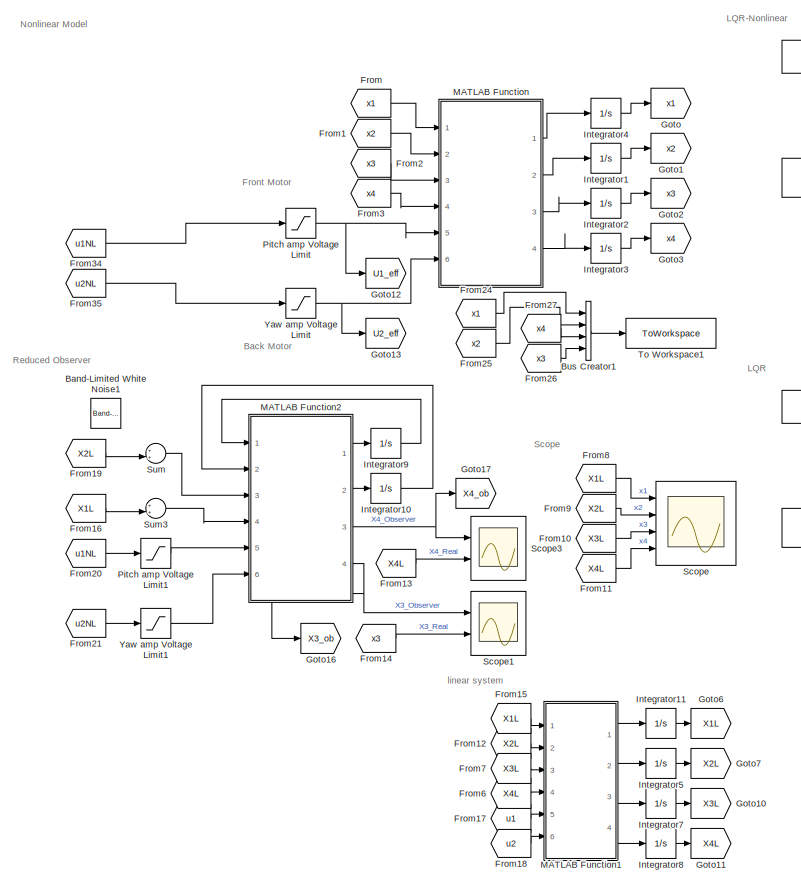
[diagram: root canvas - part 1/4, left side, full height]
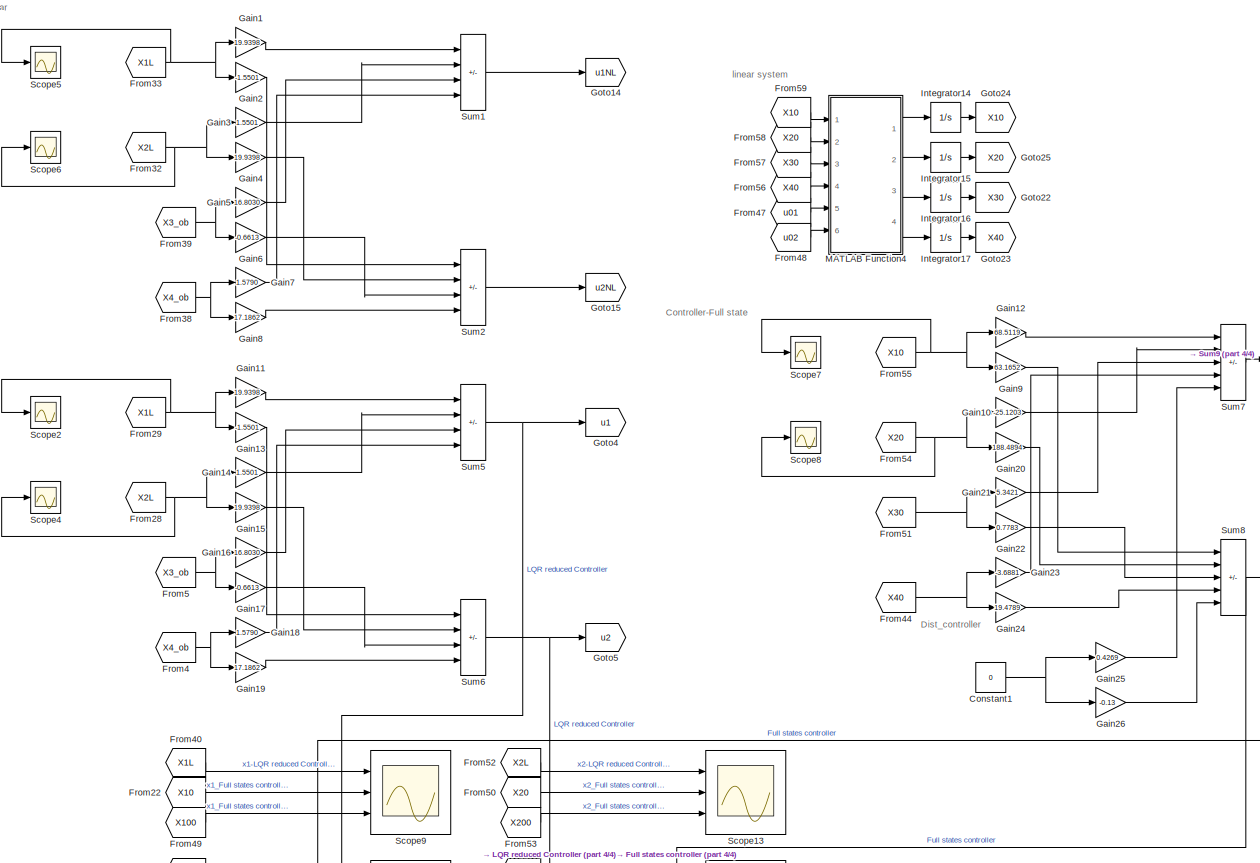
[diagram: root canvas - part 2/4, center side, full height]
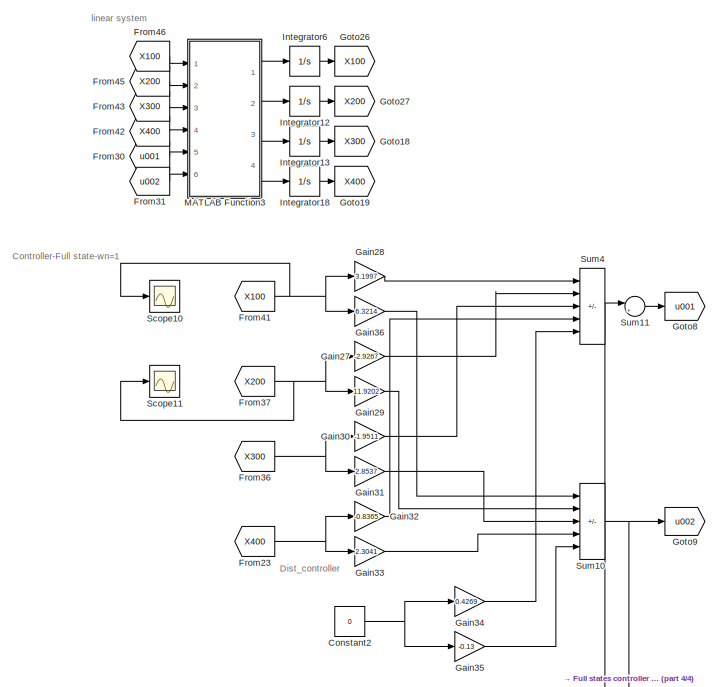
[diagram: root canvas - part 3/4, middle right region]
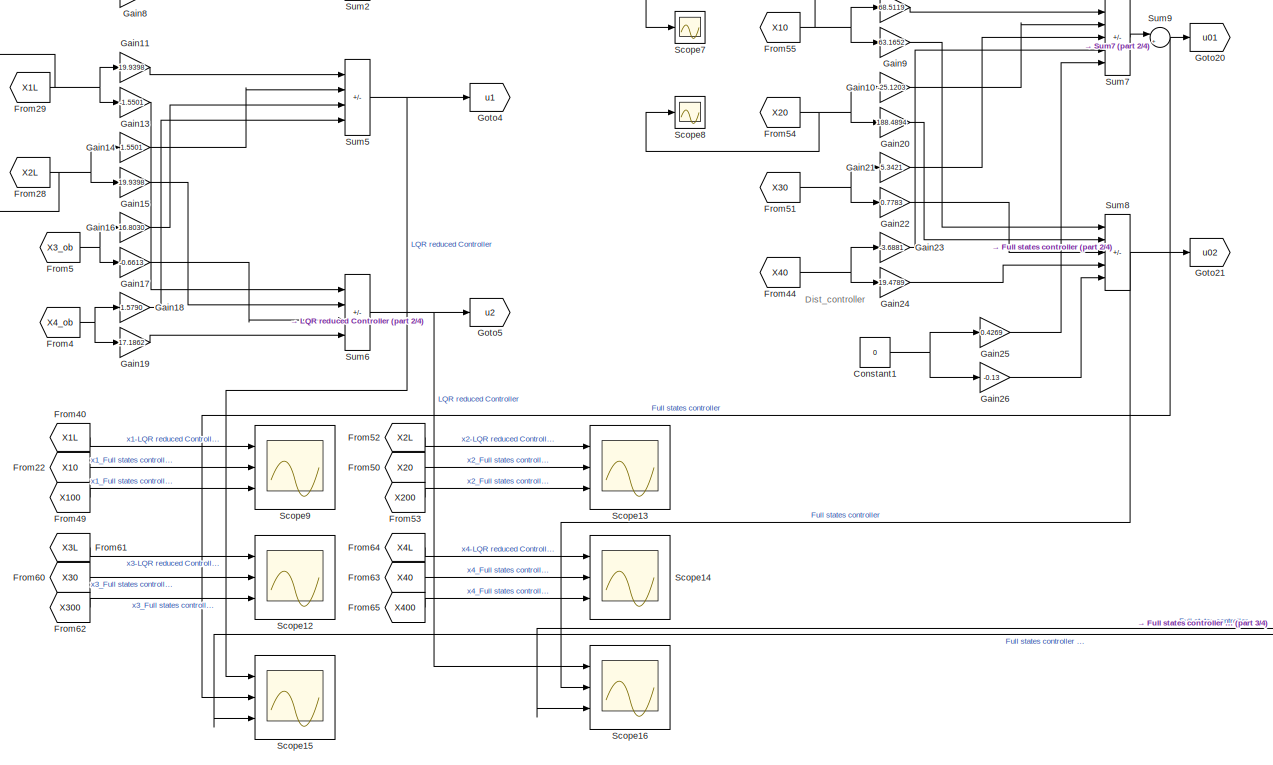
[diagram: root canvas - part 4/4, central region]
MODEL slx_fb1bff29dac0
KIND model
CONFIG AbsTol = auto
CONFIG EnableMultiTasking = off
CONFIG FixedStep = auto
CONFIG InitFcn = % NOTE: If using VoltPAQ-X1, make sure both Gain switches are set to 3.\nK_AMP = 3;\n% Maximum Output Voltage (V): YAW limited to 15 V. PITCH limited to 24 V.\nVMAX_AMP_P = 24;\nVMAX_AMP_Y = 15;\n% Initial Angle of Pitch (rad)\ntheta_0 = -40.5*pi/180;\n\ng = 9.81;\n\n% Pitch and Yaw Motor Armature Resistance (Ohm)\nR_m_p = 0.83;\nR_m_y = 1.60;\n\n% Pitch and Yaw Motor Current-Torque Constant (N.m/A)\nK_t_p = 0.0...<+2432ch>
CONFIG MaxStep = auto
CONFIG MinStep = auto
CONFIG RelTol = 1e-3
CONFIG SampleTimeConstraint = Unconstrained
CONFIG Solver = VariableStepAuto
CONFIG SolverName = VariableStepAuto
CONFIG StartTime = 0.0
CONFIG StopTime = 10
BLOCK [Reference] Band-Limited White Noise1  REF=simulink/Sources/Band-Limited
White Noise
  Ports = [0, 1]
  SourceBlock = simulink/Sources/Band-Limited\nWhite Noise
  SourceProductBaseCode = SL
  SourceType = Band-Limited White Noise.
BLOCK [BusCreator] Bus Creator1
  DisplayOption = bar
  InheritFromInputs = on
  Inputs = 4
  Ports = [4, 1]
BLOCK [Constant] Constant1
  Value = 0
BLOCK [Constant] Constant2
  Value = 0
BLOCK [From] From
  GotoTag = x1
BLOCK [From] From1
  GotoTag = x2
BLOCK [From] From10
  GotoTag = X3L
BLOCK [From] From11
  GotoTag = X4L
BLOCK [From] From12
  GotoTag = X2L
BLOCK [From] From13
  GotoTag = X4L
BLOCK [From] From14
  GotoTag = x3
BLOCK [From] From15
  GotoTag = X1L
BLOCK [From] From16
  GotoTag = X1L
BLOCK [From] From17
  GotoTag = u1
BLOCK [From] From18
  GotoTag = u2
BLOCK [From] From19
  GotoTag = X2L
BLOCK [From] From2
  GotoTag = x3
BLOCK [From] From20
  GotoTag = u1NL
BLOCK [From] From21
  GotoTag = u2NL
BLOCK [From] From22
  GotoTag = X10
BLOCK [From] From23
  GotoTag = X400
BLOCK [From] From24
  GotoTag = x1
BLOCK [From] From25
  GotoTag = x2
BLOCK [From] From26
  GotoTag = x3
BLOCK [From] From27
  GotoTag = x4
BLOCK [From] From28
  GotoTag = X2L
BLOCK [From] From29
  GotoTag = X1L
BLOCK [From] From3
  GotoTag = x4
BLOCK [From] From30
  GotoTag = u001
BLOCK [From] From31
  GotoTag = u002
BLOCK [From] From32
  GotoTag = X2L
BLOCK [From] From33
  GotoTag = X1L
BLOCK [From] From34
  GotoTag = u1NL
BLOCK [From] From35
  GotoTag = u2NL
BLOCK [From] From36
  GotoTag = X300
BLOCK [From] From37
  GotoTag = X200
BLOCK [From] From38
  GotoTag = X4_ob
BLOCK [From] From39
  GotoTag = X3_ob
BLOCK [From] From4
  GotoTag = X4_ob
BLOCK [From] From40
  GotoTag = X1L
BLOCK [From] From41
  GotoTag = X100
BLOCK [From] From42
  GotoTag = X400
BLOCK [From] From43
  GotoTag = X300
BLOCK [From] From44
  GotoTag = X40
BLOCK [From] From45
  GotoTag = X200
BLOCK [From] From46
  GotoTag = X100
BLOCK [From] From47
  GotoTag = u01
BLOCK [From] From48
  GotoTag = u02
BLOCK [From] From49
  GotoTag = X100
BLOCK [From] From5
  GotoTag = X3_ob
BLOCK [From] From50
  GotoTag = X20
BLOCK [From] From51
  GotoTag = X30
BLOCK [From] From52
  GotoTag = X2L
BLOCK [From] From53
  GotoTag = X200
BLOCK [From] From54
  GotoTag = X20
BLOCK [From] From55
  GotoTag = X10
BLOCK [From] From56
  GotoTag = X40
BLOCK [From] From57
  GotoTag = X30
BLOCK [From] From58
  GotoTag = X20
BLOCK [From] From59
  GotoTag = X10
BLOCK [From] From6
  GotoTag = X4L
BLOCK [From] From60
  GotoTag = X30
BLOCK [From] From61
  GotoTag = X3L
BLOCK [From] From62
  GotoTag = X300
BLOCK [From] From63
  GotoTag = X40
BLOCK [From] From64
  GotoTag = X4L
BLOCK [From] From65
  GotoTag = X400
BLOCK [From] From7
  GotoTag = X3L
BLOCK [From] From8
  GotoTag = X1L
BLOCK [From] From9
  GotoTag = X2L
BLOCK [Gain] Gain1
  Gain = 19.9398
BLOCK [Gain] Gain10
  Gain = -25.1203
BLOCK [Gain] Gain11
  Gain = 19.9398
BLOCK [Gain] Gain12
  Gain = 68.5119
BLOCK [Gain] Gain13
  Gain = -1.5501
BLOCK [Gain] Gain14
  Gain = 1.5501
BLOCK [Gain] Gain15
  Gain = 19.9398
BLOCK [Gain] Gain16
  Gain = 16.8030
BLOCK [Gain] Gain17
  Gain = -0.6613
BLOCK [Gain] Gain18
  Gain = 1.5790
BLOCK [Gain] Gain19
  Gain = 17.1862
BLOCK [Gain] Gain2
  Gain = -1.5501
BLOCK [Gain] Gain20
  Gain = 188.4894
BLOCK [Gain] Gain21
  Gain = 5.3421
BLOCK [Gain] Gain22
  Gain = 0.7783
BLOCK [Gain] Gain23
  Gain = -3.6881
BLOCK [Gain] Gain24
  Gain = 19.4789
BLOCK [Gain] Gain25
  Gain = 0.4269
BLOCK [Gain] Gain26
  Gain = -0.13
BLOCK [Gain] Gain27
  Gain = -2.9267
BLOCK [Gain] Gain28
  Gain = 3.1997
BLOCK [Gain] Gain29
  Gain = 11.9202
BLOCK [Gain] Gain3
  Gain = 1.5501
BLOCK [Gain] Gain30
  Gain = -1.9511
BLOCK [Gain] Gain31
  Gain = 2.8537
BLOCK [Gain] Gain32
  Gain = -0.8365
BLOCK [Gain] Gain33
  Gain = 2.3041
BLOCK [Gain] Gain34
  Gain = 0.4269
BLOCK [Gain] Gain35
  Gain = -0.13
BLOCK [Gain] Gain36
  Gain = 6.3214
BLOCK [Gain] Gain4
  Gain = 19.9398
BLOCK [Gain] Gain5
  Gain = 16.8030
BLOCK [Gain] Gain6
  Gain = -0.6613
BLOCK [Gain] Gain7
  Gain = 1.5790
BLOCK [Gain] Gain8
  Gain = 17.1862
BLOCK [Gain] Gain9
  Gain = 63.1652
BLOCK [Goto] Goto
  GotoTag = x1
BLOCK [Goto] Goto1
  GotoTag = x2
BLOCK [Goto] Goto10
  GotoTag = X3L
BLOCK [Goto] Goto11
  GotoTag = X4L
BLOCK [Goto] Goto12
  GotoTag = U1_eff
BLOCK [Goto] Goto13
  GotoTag = U2_eff
BLOCK [Goto] Goto14
  GotoTag = u1NL
BLOCK [Goto] Goto15
  GotoTag = u2NL
BLOCK [Goto] Goto16
  GotoTag = X3_ob
BLOCK [Goto] Goto17
  GotoTag = X4_ob
BLOCK [Goto] Goto18
  GotoTag = X300
BLOCK [Goto] Goto19
  GotoTag = X400
BLOCK [Goto] Goto2
  GotoTag = x3
BLOCK [Goto] Goto20
  GotoTag = u01
BLOCK [Goto] Goto21
  GotoTag = u02
BLOCK [Goto] Goto22
  GotoTag = X30
BLOCK [Goto] Goto23
  GotoTag = X40
BLOCK [Goto] Goto24
  GotoTag = X10
BLOCK [Goto] Goto25
  GotoTag = X20
BLOCK [Goto] Goto26
  GotoTag = X100
BLOCK [Goto] Goto27
  GotoTag = X200
BLOCK [Goto] Goto3
  GotoTag = x4
BLOCK [Goto] Goto4
  GotoTag = u1
BLOCK [Goto] Goto5
  GotoTag = u2
BLOCK [Goto] Goto6
  GotoTag = X1L
BLOCK [Goto] Goto7
  GotoTag = X2L
BLOCK [Goto] Goto8
  GotoTag = u001
BLOCK [Goto] Goto9
  GotoTag = u002
BLOCK [Integrator] Integrator1
  InitialCondition = 10*pi/180
  Ports = [1, 1]
BLOCK [Integrator] Integrator10
  Ports = [1, 1]
BLOCK [Integrator] Integrator11
  LowerSaturationLimit = -40.5*pi/180
  Ports = [1, 1]
  UpperSaturationLimit = 40.5*pi/180
BLOCK [Integrator] Integrator12
  InitialCondition = 10*pi/180
  Ports = [1, 1]
BLOCK [Integrator] Integrator13
  InitialCondition = 10
  Ports = [1, 1]
BLOCK [Integrator] Integrator14
  LowerSaturationLimit = -40.5*pi/180
  Ports = [1, 1]
  UpperSaturationLimit = 40.5*pi/180
BLOCK [Integrator] Integrator15
  InitialCondition = 10*pi/180
  Ports = [1, 1]
BLOCK [Integrator] Integrator16
  InitialCondition = 10
  Ports = [1, 1]
BLOCK [Integrator] Integrator17
  Ports = [1, 1]
BLOCK [Integrator] Integrator18
  Ports = [1, 1]
BLOCK [Integrator] Integrator2
  Ports = [1, 1]
BLOCK [Integrator] Integrator3
  Ports = [1, 1]
BLOCK [Integrator] Integrator4
  LowerSaturationLimit = -40.5*pi/180
  Ports = [1, 1]
  UpperSaturationLimit = 40.5*pi/180
BLOCK [Integrator] Integrator5
  InitialCondition = 10*pi/180
  Ports = [1, 1]
BLOCK [Integrator] Integrator6
  LowerSaturationLimit = -40.5*pi/180
  Ports = [1, 1]
  UpperSaturationLimit = 40.5*pi/180
BLOCK [Integrator] Integrator7
  InitialCondition = 10
  Ports = [1, 1]
BLOCK [Integrator] Integrator8
  Ports = [1, 1]
BLOCK [Integrator] Integrator9
  Ports = [1, 1]
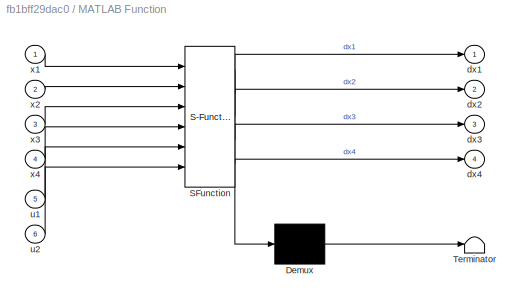
BLOCK [SubSystem] MATLAB Function
  ErrorFcn = Stateflow.Translate.translate
  PermitHierarchicalResolution = ExplicitOnly
  Ports = [6, 4]
  RequestExecContextInheritance = off
  SFBlockType = MATLAB Function
  TreatAsAtomicUnit = on
BLOCK [Demux] MATLAB Function/ Demux 
  Outputs = 1
  Ports = [1, 1]
BLOCK [S-Function] MATLAB Function/ SFunction 
  EnableBusSupport = on
  FunctionName = sf_sfun
  PortCounts = [6 5]
  Ports = [6, 5]
  SFcnIsStateOwnerBlock = off
  SFunctionDeploymentMode = off
  Tag = Stateflow S-Function Optimal_lqr 18
BLOCK [Terminator] MATLAB Function/ Terminator 
BLOCK [Outport] MATLAB Function/dx1
BLOCK [Outport] MATLAB Function/dx2
  Port = 2
BLOCK [Outport] MATLAB Function/dx3
  Port = 3
BLOCK [Outport] MATLAB Function/dx4
  Port = 4
BLOCK [Inport] MATLAB Function/u1
  Port = 5
BLOCK [Inport] MATLAB Function/u2
  Port = 6
BLOCK [Inport] MATLAB Function/x1
BLOCK [Inport] MATLAB Function/x2
  Port = 2
BLOCK [Inport] MATLAB Function/x3
  Port = 3
BLOCK [Inport] MATLAB Function/x4
  Port = 4
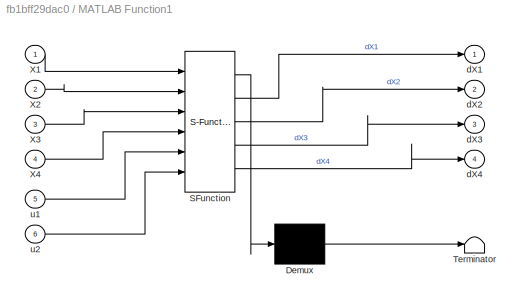
BLOCK [SubSystem] MATLAB Function1
  ErrorFcn = Stateflow.Translate.translate
  PermitHierarchicalResolution = ExplicitOnly
  Ports = [6, 4]
  RequestExecContextInheritance = off
  SFBlockType = MATLAB Function
  TreatAsAtomicUnit = on
BLOCK [Demux] MATLAB Function1/ Demux 
  Outputs = 1
  Ports = [1, 1]
BLOCK [S-Function] MATLAB Function1/ SFunction 
  EnableBusSupport = on
  FunctionName = sf_sfun
  PortCounts = [6 5]
  Ports = [6, 5]
  SFcnIsStateOwnerBlock = off
  SFunctionDeploymentMode = off
  Tag = Stateflow S-Function Optimal_lqr 1
BLOCK [Terminator] MATLAB Function1/ Terminator 
BLOCK [Inport] MATLAB Function1/X1
BLOCK [Inport] MATLAB Function1/X2
  Port = 2
BLOCK [Inport] MATLAB Function1/X3
  Port = 3
BLOCK [Inport] MATLAB Function1/X4
  Port = 4
BLOCK [Outport] MATLAB Function1/dX1
BLOCK [Outport] MATLAB Function1/dX2
  Port = 2
BLOCK [Outport] MATLAB Function1/dX3
  Port = 3
BLOCK [Outport] MATLAB Function1/dX4
  Port = 4
BLOCK [Inport] MATLAB Function1/u1
  Port = 5
BLOCK [Inport] MATLAB Function1/u2
  Port = 6
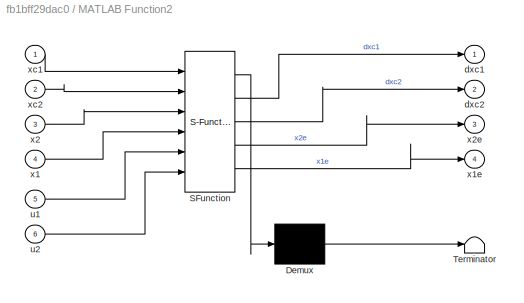
BLOCK [SubSystem] MATLAB Function2
  ErrorFcn = Stateflow.Translate.translate
  PermitHierarchicalResolution = ExplicitOnly
  Ports = [6, 4]
  RequestExecContextInheritance = off
  SFBlockType = MATLAB Function
  TreatAsAtomicUnit = on
BLOCK [Demux] MATLAB Function2/ Demux 
  Outputs = 1
  Ports = [1, 1]
BLOCK [S-Function] MATLAB Function2/ SFunction 
  EnableBusSupport = on
  FunctionName = sf_sfun
  PortCounts = [6 5]
  Ports = [6, 5]
  SFcnIsStateOwnerBlock = off
  SFunctionDeploymentMode = off
  Tag = Stateflow S-Function Optimal_lqr 2
BLOCK [Terminator] MATLAB Function2/ Terminator 
BLOCK [Outport] MATLAB Function2/dxc1
BLOCK [Outport] MATLAB Function2/dxc2
  Port = 2
BLOCK [Inport] MATLAB Function2/u1
  Port = 5
BLOCK [Inport] MATLAB Function2/u2
  Port = 6
BLOCK [Inport] MATLAB Function2/x1
  Port = 4
BLOCK [Outport] MATLAB Function2/x1e
  Port = 4
BLOCK [Inport] MATLAB Function2/x2
  Port = 3
BLOCK [Outport] MATLAB Function2/x2e
  Port = 3
BLOCK [Inport] MATLAB Function2/xc1
BLOCK [Inport] MATLAB Function2/xc2
  Port = 2
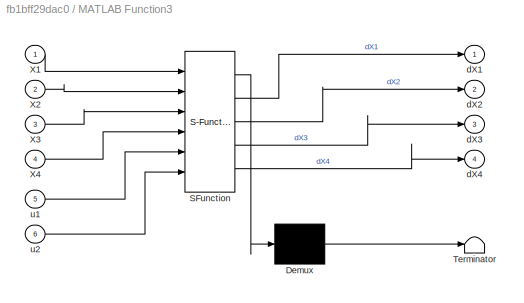
BLOCK [SubSystem] MATLAB Function3
  ErrorFcn = Stateflow.Translate.translate
  PermitHierarchicalResolution = ExplicitOnly
  Ports = [6, 4]
  RequestExecContextInheritance = off
  SFBlockType = MATLAB Function
  TreatAsAtomicUnit = on
BLOCK [Demux] MATLAB Function3/ Demux 
  Outputs = 1
  Ports = [1, 1]
BLOCK [S-Function] MATLAB Function3/ SFunction 
  EnableBusSupport = on
  FunctionName = sf_sfun
  PortCounts = [6 5]
  Ports = [6, 5]
  SFcnIsStateOwnerBlock = off
  SFunctionDeploymentMode = off
  Tag = Stateflow S-Function Optimal_lqr 3
BLOCK [Terminator] MATLAB Function3/ Terminator 
BLOCK [Inport] MATLAB Function3/X1
BLOCK [Inport] MATLAB Function3/X2
  Port = 2
BLOCK [Inport] MATLAB Function3/X3
  Port = 3
BLOCK [Inport] MATLAB Function3/X4
  Port = 4
BLOCK [Outport] MATLAB Function3/dX1
BLOCK [Outport] MATLAB Function3/dX2
  Port = 2
BLOCK [Outport] MATLAB Function3/dX3
  Port = 3
BLOCK [Outport] MATLAB Function3/dX4
  Port = 4
BLOCK [Inport] MATLAB Function3/u1
  Port = 5
BLOCK [Inport] MATLAB Function3/u2
  Port = 6
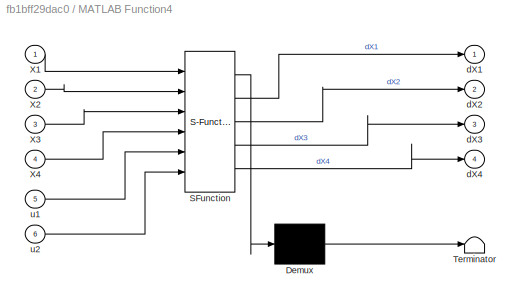
BLOCK [SubSystem] MATLAB Function4
  ErrorFcn = Stateflow.Translate.translate
  PermitHierarchicalResolution = ExplicitOnly
  Ports = [6, 4]
  RequestExecContextInheritance = off
  SFBlockType = MATLAB Function
  TreatAsAtomicUnit = on
BLOCK [Demux] MATLAB Function4/ Demux 
  Outputs = 1
  Ports = [1, 1]
BLOCK [S-Function] MATLAB Function4/ SFunction 
  EnableBusSupport = on
  FunctionName = sf_sfun
  PortCounts = [6 5]
  Ports = [6, 5]
  SFcnIsStateOwnerBlock = off
  SFunctionDeploymentMode = off
  Tag = Stateflow S-Function Optimal_lqr 4
BLOCK [Terminator] MATLAB Function4/ Terminator 
BLOCK [Inport] MATLAB Function4/X1
BLOCK [Inport] MATLAB Function4/X2
  Port = 2
BLOCK [Inport] MATLAB Function4/X3
  Port = 3
BLOCK [Inport] MATLAB Function4/X4
  Port = 4
BLOCK [Outport] MATLAB Function4/dX1
BLOCK [Outport] MATLAB Function4/dX2
  Port = 2
BLOCK [Outport] MATLAB Function4/dX3
  Port = 3
BLOCK [Outport] MATLAB Function4/dX4
  Port = 4
BLOCK [Inport] MATLAB Function4/u1
  Port = 5
BLOCK [Inport] MATLAB Function4/u2
  Port = 6
BLOCK [Saturate] Pitch amp Voltage Limit
  LowerLimit = - VMAX_AMP_P
  UpperLimit = VMAX_AMP_P
BLOCK [Saturate] Pitch amp Voltage Limit1
  LowerLimit = - VMAX_AMP_P
  UpperLimit = VMAX_AMP_P
BLOCK [Scope] Scope
  Floating = off
  NumInputPorts = 4
  Ports = [4]
  ScopeSpecificationString = Simulink.scopes.TimeScopeBlockCfg('CurrentConfiguration', extmgr.ConfigurationSet(extmgr.Configuration('Core','General UI',true,'FigureColor',[1 1 1]),extmgr.Configuration('Core','Source UI',true),extmgr.Configuration('Sources','WiredSimulink',true,'DataLoggingVariableName','ScopeData1'),extmgr.Configuration('Visuals','Time Domain',true,'SerializedDisplays',{struct('MinYLimReal','-3.4179','MaxYLim...<+1964ch>
BLOCK [Scope] Scope1
  Floating = off
  NumInputPorts = 2
  Ports = [2]
  ScopeSpecificationString = Simulink.scopes.TimeScopeBlockCfg('CurrentConfiguration', extmgr.ConfigurationSet(extmgr.Configuration('Core','General UI',true),extmgr.Configuration('Core','Source UI',true),extmgr.Configuration('Sources','WiredSimulink',true,'DataLoggingVariableName','ScopeData2'),extmgr.Configuration('Visuals','Time Domain',true,'SerializedDisplays',{struct('MinYLimReal','-5.24994','MaxYLimReal','4.24069','YLab...<+2034ch>
BLOCK [Scope] Scope10
  Floating = off
  NumInputPorts = 1
  Ports = [1]
  ScopeSpecificationString = Simulink.scopes.TimeScopeBlockCfg('CurrentConfiguration', extmgr.ConfigurationSet(extmgr.Configuration('Core','General UI',true),extmgr.Configuration('Core','Source UI',true),extmgr.Configuration('Sources','WiredSimulink',true,'DataLoggingVariableName','ScopeData4'),extmgr.Configuration('Visuals','Time Domain',true,'SerializedDisplays',{struct('MinYLimReal','-0.51971','MaxYLimReal','0.05775','YLab...<+1370ch>
BLOCK [Scope] Scope11
  Floating = off
  NumInputPorts = 1
  Ports = [1]
  ScopeSpecificationString = Simulink.scopes.TimeScopeBlockCfg('CurrentConfiguration', extmgr.ConfigurationSet(extmgr.Configuration('Core','General UI',true),extmgr.Configuration('Core','Source UI',true),extmgr.Configuration('Sources','WiredSimulink',true,'DataLoggingVariableName','ScopeData5'),extmgr.Configuration('Visuals','Time Domain',true,'SerializedDisplays',{struct('MinYLimReal','-0.09182','MaxYLimReal','2.23242','YLab...<+1370ch>
BLOCK [Scope] Scope12
  Floating = off
  NumInputPorts = 3
  Ports = [3]
  ScopeSpecificationString = Simulink.scopes.TimeScopeBlockCfg('CurrentConfiguration', extmgr.ConfigurationSet(extmgr.Configuration('Core','General UI',true,'FigureColor',[1 1 1]),extmgr.Configuration('Core','Source UI',true),extmgr.Configuration('Sources','WiredSimulink',true,'DataLoggingVariableName','ScopeData6'),extmgr.Configuration('Visuals','Time Domain',true,'SerializedDisplays',{struct('MinYLimReal','-3.65901','MaxYLi...<+2034ch>
BLOCK [Scope] Scope13
  Floating = off
  NumInputPorts = 3
  Ports = [3]
  ScopeSpecificationString = Simulink.scopes.TimeScopeBlockCfg('CurrentConfiguration', extmgr.ConfigurationSet(extmgr.Configuration('Core','General UI',true,'FigureColor',[1 1 1]),extmgr.Configuration('Core','Source UI',true),extmgr.Configuration('Sources','WiredSimulink',true,'DataLoggingVariableName','ScopeData7'),extmgr.Configuration('Visuals','Time Domain',true,'SerializedDisplays',{struct('MinYLimReal','-0.69384','MaxYLi...<+2030ch>
BLOCK [Scope] Scope14
  Floating = off
  NumInputPorts = 3
  Ports = [3]
  ScopeSpecificationString = Simulink.scopes.TimeScopeBlockCfg('CurrentConfiguration', extmgr.ConfigurationSet(extmgr.Configuration('Core','General UI',true,'FigureColor',[1 1 1]),extmgr.Configuration('Core','Source UI',true),extmgr.Configuration('Sources','WiredSimulink',true,'DataLoggingVariableName','ScopeData8'),extmgr.Configuration('Visuals','Time Domain',true,'SerializedDisplays',{struct('MinYLimReal','-2.27271','MaxYLi...<+2030ch>
BLOCK [Scope] Scope15
  Floating = off
  NumInputPorts = 3
  Ports = [3]
  ScopeSpecificationString = Simulink.scopes.TimeScopeBlockCfg('CurrentConfiguration', extmgr.ConfigurationSet(extmgr.Configuration('Core','General UI',true,'FigureColor',[1 1 1]),extmgr.Configuration('Core','Source UI',true),extmgr.Configuration('Sources','WiredSimulink',true,'DataLoggingVariableName','ScopeData9'),extmgr.Configuration('Visuals','Time Domain',true,'SerializedDisplays',{struct('MinYLimReal','-72.53635','MaxYL...<+2019ch>
BLOCK [Scope] Scope16
  Floating = off
  NumInputPorts = 3
  Ports = [3]
  ScopeSpecificationString = Simulink.scopes.TimeScopeBlockCfg('CurrentConfiguration', extmgr.ConfigurationSet(extmgr.Configuration('Core','General UI',true,'FigureColor',[1 1 1]),extmgr.Configuration('Core','Source UI',true),extmgr.Configuration('Sources','WiredSimulink',true,'DataLoggingVariableName','ScopeData10'),extmgr.Configuration('Visuals','Time Domain',true,'SerializedDisplays',{struct('MinYLimReal','-197.68942','Max...<+2026ch>
BLOCK [Scope] Scope2
  Floating = off
  NumInputPorts = 1
  Ports = [1]
  ScopeSpecificationString = Simulink.scopes.TimeScopeBlockCfg('CurrentConfiguration', extmgr.ConfigurationSet(extmgr.Configuration('Core','General UI',true),extmgr.Configuration('Core','Source UI',true),extmgr.Configuration('Sources','WiredSimulink',true,'DataLoggingVariableName','ScopeData3'),extmgr.Configuration('Visuals','Time Domain',true,'SerializedDisplays',{struct('MinYLimReal','-0.02428','MaxYLimReal','0.21851','YLab...<+1371ch>
BLOCK [Scope] Scope3
  Floating = off
  NumInputPorts = 2
  Ports = [2]
  ScopeSpecificationString = Simulink.scopes.TimeScopeBlockCfg('CurrentConfiguration', extmgr.ConfigurationSet(extmgr.Configuration('Core','General UI',true),extmgr.Configuration('Core','Source UI',true),extmgr.Configuration('Sources','WiredSimulink',true,'DataLoggingVariableName','ScopeData4'),extmgr.Configuration('Visuals','Time Domain',true,'SerializedDisplays',{struct('MinYLimReal','-3.40064','MaxYLimReal','11.33551','YLa...<+2046ch>
BLOCK [Scope] Scope4
  Floating = off
  NumInputPorts = 1
  Ports = [1]
  ScopeSpecificationString = Simulink.scopes.TimeScopeBlockCfg('CurrentConfiguration', extmgr.ConfigurationSet(extmgr.Configuration('Core','General UI',true),extmgr.Configuration('Core','Source UI',true),extmgr.Configuration('Sources','WiredSimulink',true,'DataLoggingVariableName','ScopeData5'),extmgr.Configuration('Visuals','Time Domain',true,'SerializedDisplays',{struct('MinYLimReal','-0.0427','MaxYLimReal','0.00474','YLabe...<+1366ch>
BLOCK [Scope] Scope5
  Floating = off
  NumInputPorts = 1
  Ports = [1]
  ScopeSpecificationString = Simulink.scopes.TimeScopeBlockCfg('CurrentConfiguration', extmgr.ConfigurationSet(extmgr.Configuration('Core','General UI',true),extmgr.Configuration('Core','Source UI',true),extmgr.Configuration('Sources','WiredSimulink',true),extmgr.Configuration('Visuals','Time Domain',true,'SerializedDisplays',{struct('MinYLimReal','-0.00243','MaxYLimReal','0.02185','YLabelReal','','MinYLimMag','0.00000','MaxY...<+1332ch>
BLOCK [Scope] Scope6
  Floating = off
  NumInputPorts = 1
  Ports = [1]
  ScopeSpecificationString = Simulink.scopes.TimeScopeBlockCfg('CurrentConfiguration', extmgr.ConfigurationSet(extmgr.Configuration('Core','General UI',true),extmgr.Configuration('Core','Source UI',true),extmgr.Configuration('Sources','WiredSimulink',true,'DataLoggingVariableName','ScopeData6'),extmgr.Configuration('Visuals','Time Domain',true,'SerializedDisplays',{struct('MinYLimReal','-0.00427','MaxYLimReal','0.00047','YLab...<+1370ch>
BLOCK [Scope] Scope7
  Floating = off
  NumInputPorts = 1
  Ports = [1]
  ScopeSpecificationString = Simulink.scopes.TimeScopeBlockCfg('CurrentConfiguration', extmgr.ConfigurationSet(extmgr.Configuration('Core','General UI',true),extmgr.Configuration('Core','Source UI',true),extmgr.Configuration('Sources','WiredSimulink',true,'DataLoggingVariableName','ScopeData1'),extmgr.Configuration('Visuals','Time Domain',true,'SerializedDisplays',{struct('MinYLimReal','-0.51971','MaxYLimReal','0.05775','YLab...<+1370ch>
BLOCK [Scope] Scope8
  Floating = off
  NumInputPorts = 1
  Ports = [1]
  ScopeSpecificationString = Simulink.scopes.TimeScopeBlockCfg('CurrentConfiguration', extmgr.ConfigurationSet(extmgr.Configuration('Core','General UI',true),extmgr.Configuration('Core','Source UI',true),extmgr.Configuration('Sources','WiredSimulink',true,'DataLoggingVariableName','ScopeData2'),extmgr.Configuration('Visuals','Time Domain',true,'SerializedDisplays',{struct('MinYLimReal','-0.09182','MaxYLimReal','2.23242','YLab...<+1370ch>
BLOCK [Scope] Scope9
  Floating = off
  NumInputPorts = 3
  Ports = [3]
  ScopeSpecificationString = Simulink.scopes.TimeScopeBlockCfg('CurrentConfiguration', extmgr.ConfigurationSet(extmgr.Configuration('Core','General UI',true,'FigureColor',[1 1 1]),extmgr.Configuration('Core','Source UI',true),extmgr.Configuration('Sources','WiredSimulink',true,'DataLoggingVariableName','ScopeData3'),extmgr.Configuration('Visuals','Time Domain',true,'SerializedDisplays',{struct('MinYLimReal','-0.24617','MaxYLi...<+2030ch>
BLOCK [Sum] Sum
  Inputs = ++|
  Ports = [2, 1]
BLOCK [Sum] Sum1
  IconShape = rectangular
  Inputs = ----
  Ports = [4, 1]
BLOCK [Sum] Sum10
  IconShape = rectangular
  Inputs = -----
  Ports = [5, 1]
BLOCK [Sum] Sum11
  Inputs = |++
  Ports = [2, 1]
BLOCK [Sum] Sum2
  IconShape = rectangular
  Inputs = ----
  Ports = [4, 1]
BLOCK [Sum] Sum3
  Inputs = ++|
  Ports = [2, 1]
BLOCK [Sum] Sum4
  IconShape = rectangular
  Inputs = -----
  Ports = [5, 1]
BLOCK [Sum] Sum5
  IconShape = rectangular
  Inputs = ----
  Ports = [4, 1]
BLOCK [Sum] Sum6
  IconShape = rectangular
  Inputs = ----
  Ports = [4, 1]
BLOCK [Sum] Sum7
  IconShape = rectangular
  Inputs = -----
  Ports = [5, 1]
BLOCK [Sum] Sum8
  IconShape = rectangular
  Inputs = -----
  Ports = [5, 1]
BLOCK [Sum] Sum9
  Inputs = |++
  Ports = [2, 1]
BLOCK [ToWorkspace] To Workspace1
  FixptAsFi = on
  MaxDataPoints = inf
  Ports = [1]
  SampleTime = -1
  VariableName = NonLinear
BLOCK [Saturate] Yaw amp Voltage Limit
  LowerLimit = - VMAX_AMP_Y
  UpperLimit = VMAX_AMP_Y
BLOCK [Saturate] Yaw amp Voltage Limit1
  LowerLimit = - VMAX_AMP_Y
  UpperLimit = VMAX_AMP_Y
ANNOTATION (root): Back Motor
ANNOTATION (root): Controller-Full state
ANNOTATION (root): Controller-Full state-wn=1
ANNOTATION (root): Dist_controller
ANNOTATION (root): Front Motor
ANNOTATION (root): LQR
ANNOTATION (root): LQR-Nonlinear
ANNOTATION (root): Nonlinear Model
ANNOTATION (root): Reduced Observer
ANNOTATION (root): Scope
ANNOTATION (root): linear system
LINE Bus Creator1:1 -> To Workspace1:1
NET Constant1:1 -> Gain25:1, Gain26:1
NET Constant2:1 -> Gain34:1, Gain35:1
LINE From10:1 -> Scope:3
LINE From11:1 -> Scope:4
LINE From12:1 -> MATLAB Function1:2
LINE From13:1 -> Scope3:2
LINE From14:1 -> Scope1:2
LINE From15:1 -> MATLAB Function1:1
LINE From16:1 -> Sum3:2
LINE From17:1 -> MATLAB Function1:5
LINE From18:1 -> MATLAB Function1:6
LINE From19:1 -> Sum:2
LINE From1:1 -> MATLAB Function:2
LINE From20:1 -> Pitch amp Voltage Limit1:1
LINE From21:1 -> Yaw amp Voltage Limit1:1
LINE From22:1 -> Scope9:2
NET From23:1 -> Gain32:1, Gain33:1
LINE From24:1 -> Bus Creator1:1
LINE From25:1 -> Bus Creator1:2
LINE From26:1 -> Bus Creator1:4
LINE From27:1 -> Bus Creator1:3
NET From28:1 -> Gain14:1, Gain15:1, Scope4:1
NET From29:1 -> Gain11:1, Gain13:1, Scope2:1
LINE From2:1 -> MATLAB Function:3
LINE From30:1 -> MATLAB Function3:5
LINE From31:1 -> MATLAB Function3:6
NET From32:1 -> Gain3:1, Gain4:1, Scope6:1
NET From33:1 -> Gain1:1, Gain2:1, Scope5:1
LINE From34:1 -> Pitch amp Voltage Limit:1
LINE From35:1 -> Yaw amp Voltage Limit:1
NET From36:1 -> Gain30:1, Gain31:1
NET From37:1 -> Gain27:1, Gain29:1, Scope11:1
NET From38:1 -> Gain7:1, Gain8:1
NET From39:1 -> Gain5:1, Gain6:1
LINE From3:1 -> MATLAB Function:4
LINE From40:1 -> Scope9:1
NET From41:1 -> Gain28:1, Gain36:1, Scope10:1
LINE From42:1 -> MATLAB Function3:4
LINE From43:1 -> MATLAB Function3:3
NET From44:1 -> Gain23:1, Gain24:1
LINE From45:1 -> MATLAB Function3:2
LINE From46:1 -> MATLAB Function3:1
LINE From47:1 -> MATLAB Function4:5
LINE From48:1 -> MATLAB Function4:6
LINE From49:1 -> Scope9:3
NET From4:1 -> Gain18:1, Gain19:1
LINE From50:1 -> Scope13:2
NET From51:1 -> Gain21:1, Gain22:1
LINE From52:1 -> Scope13:1
LINE From53:1 -> Scope13:3
NET From54:1 -> Gain10:1, Gain20:1, Scope8:1
NET From55:1 -> Gain12:1, Gain9:1, Scope7:1
LINE From56:1 -> MATLAB Function4:4
LINE From57:1 -> MATLAB Function4:3
LINE From58:1 -> MATLAB Function4:2
LINE From59:1 -> MATLAB Function4:1
NET From5:1 -> Gain16:1, Gain17:1
LINE From60:1 -> Scope12:2
LINE From61:1 -> Scope12:1
LINE From62:1 -> Scope12:3
LINE From63:1 -> Scope14:2
LINE From64:1 -> Scope14:1
LINE From65:1 -> Scope14:3
LINE From6:1 -> MATLAB Function1:4
LINE From7:1 -> MATLAB Function1:3
LINE From8:1 -> Scope:1
LINE From9:1 -> Scope:2
LINE From:1 -> MATLAB Function:1
LINE Gain10:1 -> Sum7:2
LINE Gain11:1 -> Sum5:1
LINE Gain12:1 -> Sum7:1
LINE Gain13:1 -> Sum6:1
LINE Gain14:1 -> Sum5:2
LINE Gain15:1 -> Sum6:2
LINE Gain16:1 -> Sum5:3
LINE Gain17:1 -> Sum6:3
LINE Gain18:1 -> Sum5:4
LINE Gain19:1 -> Sum6:4
LINE Gain1:1 -> Sum1:1
LINE Gain20:1 -> Sum8:2
LINE Gain21:1 -> Sum7:3
LINE Gain22:1 -> Sum8:3
LINE Gain23:1 -> Sum7:4
LINE Gain24:1 -> Sum8:4
LINE Gain25:1 -> Sum7:5
LINE Gain26:1 -> Sum8:5
LINE Gain27:1 -> Sum4:2
LINE Gain28:1 -> Sum4:1
LINE Gain29:1 -> Sum10:2
LINE Gain2:1 -> Sum2:1
LINE Gain30:1 -> Sum4:3
LINE Gain31:1 -> Sum10:3
LINE Gain32:1 -> Sum4:4
LINE Gain33:1 -> Sum10:4
LINE Gain34:1 -> Sum4:5
LINE Gain35:1 -> Sum10:5
LINE Gain36:1 -> Sum10:1
LINE Gain3:1 -> Sum1:2
LINE Gain4:1 -> Sum2:2
LINE Gain5:1 -> Sum1:3
LINE Gain6:1 -> Sum2:3
LINE Gain7:1 -> Sum1:4
LINE Gain8:1 -> Sum2:4
LINE Gain9:1 -> Sum8:1
LINE Integrator10:1 -> MATLAB Function2:2
LINE Integrator11:1 -> Goto6:1
LINE Integrator12:1 -> Goto27:1
LINE Integrator13:1 -> Goto18:1
LINE Integrator14:1 -> Goto24:1
LINE Integrator15:1 -> Goto25:1
LINE Integrator16:1 -> Goto22:1
LINE Integrator17:1 -> Goto23:1
LINE Integrator18:1 -> Goto19:1
LINE Integrator1:1 -> Goto1:1
LINE Integrator2:1 -> Goto2:1
LINE Integrator3:1 -> Goto3:1
LINE Integrator4:1 -> Goto:1
LINE Integrator5:1 -> Goto7:1
LINE Integrator6:1 -> Goto26:1
LINE Integrator7:1 -> Goto10:1
LINE Integrator8:1 -> Goto11:1
LINE Integrator9:1 -> MATLAB Function2:1
LINE MATLAB Function1:1 -> Integrator11:1
LINE MATLAB Function1:2 -> Integrator5:1
LINE MATLAB Function1:3 -> Integrator7:1
LINE MATLAB Function1:4 -> Integrator8:1
LINE MATLAB Function2:1 -> Integrator9:1
LINE MATLAB Function2:2 -> Integrator10:1
NET MATLAB Function2:3 -> Goto17:1, Scope3:1
NET MATLAB Function2:4 -> Goto16:1, Scope1:1
LINE MATLAB Function3:1 -> Integrator6:1
LINE MATLAB Function3:2 -> Integrator12:1
LINE MATLAB Function3:3 -> Integrator13:1
LINE MATLAB Function3:4 -> Integrator18:1
LINE MATLAB Function4:1 -> Integrator14:1
LINE MATLAB Function4:2 -> Integrator15:1
LINE MATLAB Function4:3 -> Integrator16:1
LINE MATLAB Function4:4 -> Integrator17:1
LINE MATLAB Function:1 -> Integrator4:1
LINE MATLAB Function:2 -> Integrator1:1
LINE MATLAB Function:3 -> Integrator2:1
LINE MATLAB Function:4 -> Integrator3:1
LINE Pitch amp Voltage Limit1:1 -> MATLAB Function2:5
NET Pitch amp Voltage Limit:1 -> Goto12:1, MATLAB Function:5
NET Sum10:1 -> Goto9:1, Scope16:3
LINE Sum11:1 -> Goto8:1
LINE Sum1:1 -> Goto14:1
LINE Sum2:1 -> Goto15:1
LINE Sum3:1 -> MATLAB Function2:4
NET Sum4:1 -> Scope15:3, Sum11:1
NET Sum5:1 -> Goto4:1, Scope15:1
NET Sum6:1 -> Goto5:1, Scope16:1
LINE Sum7:1 -> Sum9:1
NET Sum8:1 -> Goto21:1, Scope16:2
NET Sum9:1 -> Goto20:1, Scope15:2
LINE Sum:1 -> MATLAB Function2:3
LINE Yaw amp Voltage Limit1:1 -> MATLAB Function2:6
NET Yaw amp Voltage Limit:1 -> Goto13:1, MATLAB Function:6
note: NET lines group one-source signal fan-out (src -> all destinations, sorted); 1:1 wires keep LINE
CHART MATLAB Function1 states=1 transitions=1
  STATE_LABEL 'eML_blk_kernel()'
  STATE_LABEL "SCRIPT:\nfunction [dX1,dX2,dX3,dX4] = Linear(X1,X2,X3,X4,u1,u2)\n%#codegen\n\nA=[      0         0    1.0000         0\n         0         0         0    1.0000\n         0         0   -9.2751         0\n         0         0         0   -3.4955];\n     \nB=[      0         0\n         0         0\n    2.3667    0.0790\n    0.2410    0.7913];\n\nX = [X1;X2;X3;X4];\nU=[u1,u2].';\ndX = A*X+B*U;\ndX1 = dX(1);\ndX2 = dX...<+31ch>"  <repeated x3 — deduplicated; at blocks: MATLAB Function1, MATLAB Function3, MATLAB Function4>
CHART MATLAB Function2 states=1 transitions=1
  STATE_LABEL 'eML_blk_kernel()'
  STATE_LABEL 'SCRIPT:\nfunction [dxc1,dxc2,x2e,x1e] = Re_Observer(xc1,xc2,x2,x1,u1,u2)\n\nA=[      0         0    1.0000         0\n         0         0         0    1.0000\n         0         0   -9.2751         0\n         0         0         0   -3.4955];\n     \nB=[      0         0\n         0         0\n    2.3667    0.0790\n    0.2410    0.7913];\nC=[  1     0     0     0\n     0     1     0     0];\n\n D=[  0     0\n  ...<+457ch>'
CHART MATLAB Function3 states=1 transitions=1
  STATE_LABEL 'eML_blk_kernel()'
CHART MATLAB Function4 states=1 transitions=1
  STATE_LABEL 'eML_blk_kernel()'
CHART MATLAB Function states=1 transitions=1
  STATE_LABEL 'eML_blk_kernel()'
  STATE_LABEL 'SCRIPT:\nfunction [dx1,dx2,dx3,dx4]= NonlinearFunc(x1,x2,x3,x4,u1,u2)\n%% Initial Conditions\n% Gravitational Constant (m/s^2)\ng = 9.81;\n\n% Pitch and Yaw Motor Armature Resistance (Ohm)\nR_m_p = 0.83;\nR_m_y = 1.60;\n\n% Pitch and Yaw Motor Current-Torque Constant (N.m/A)\nK_t_p = 0.0182;\nK_t_y = 0.0109;\n\n% Pitch and Yaw Motor Voltage-Torque Constant (N.m/V)\nK_yp = K_t_p / R_m_p;\nK_py = K_t_y / R_m_y;\n\n% ...<+2521ch>'
